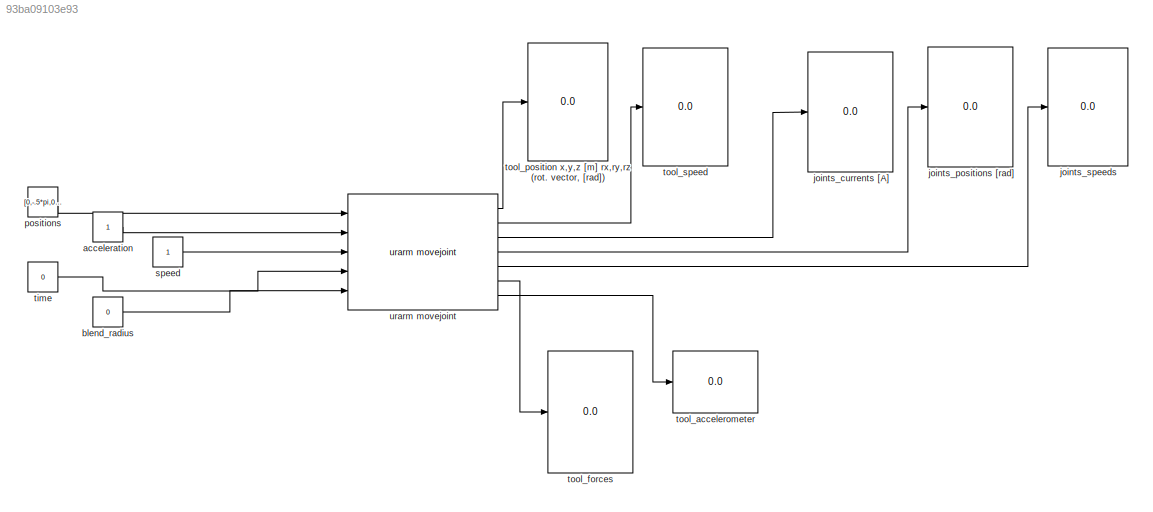
MODEL slx_93ba09103e93
KIND model
BLOCK [Constant] acceleration
BLOCK [Constant] blend_radius
  Value = 0
BLOCK [Display] joints_currents [A]
  Decimation = 1
  Ports = [1]
BLOCK [Display] joints_positions [rad]
  Decimation = 1
  Ports = [1]
BLOCK [Display] joints_speeds
  Decimation = 1
  Ports = [1]
BLOCK [Constant] positions
  Value = [0,-.5*pi,0,-.5*pi,1,0]
BLOCK [Constant] speed
BLOCK [Constant] time
  Value = 0
BLOCK [Display] tool_accelerometer
  Decimation = 1
  Ports = [1]
BLOCK [Display] tool_forces
  Decimation = 1
  Ports = [1]
BLOCK [Display] tool_position x,y,z [m] rx,ry,rz (rot. vector, [rad])
  Decimation = 1
  Ports = [1]
BLOCK [Display] tool_speed
  Decimation = 1
  Ports = [1]
BLOCK [Reference] urarm movejoint  REF=urarm_simulink/urarm movejoint  (lib defined in slx_d7c44af7ec9c)
  Ports = [5, 7]
  SourceBlock = urarm_simulink/urarm movejoint
  Ts = 0
LINE acceleration:1 -> urarm movejoint:2
LINE blend_radius:1 -> urarm movejoint:5
LINE positions:1 -> urarm movejoint:1
LINE speed:1 -> urarm movejoint:3
LINE time:1 -> urarm movejoint:4
LINE urarm movejoint:1 -> tool_position x,y,z [m] rx,ry,rz (rot. vector, [rad]):1
LINE urarm movejoint:2 -> tool_speed:1
LINE urarm movejoint:3 -> joints_currents [A]:1
LINE urarm movejoint:4 -> joints_positions [rad]:1
LINE urarm movejoint:5 -> joints_speeds:1
LINE urarm movejoint:6 -> tool_forces:1
LINE urarm movejoint:7 -> tool_accelerometer:1
